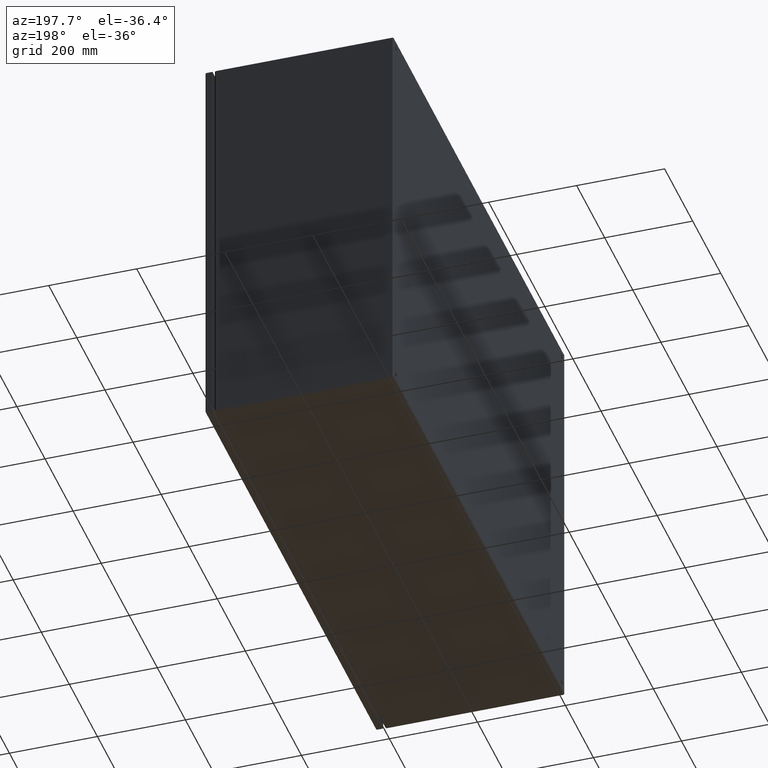
[diagram: clean part render]
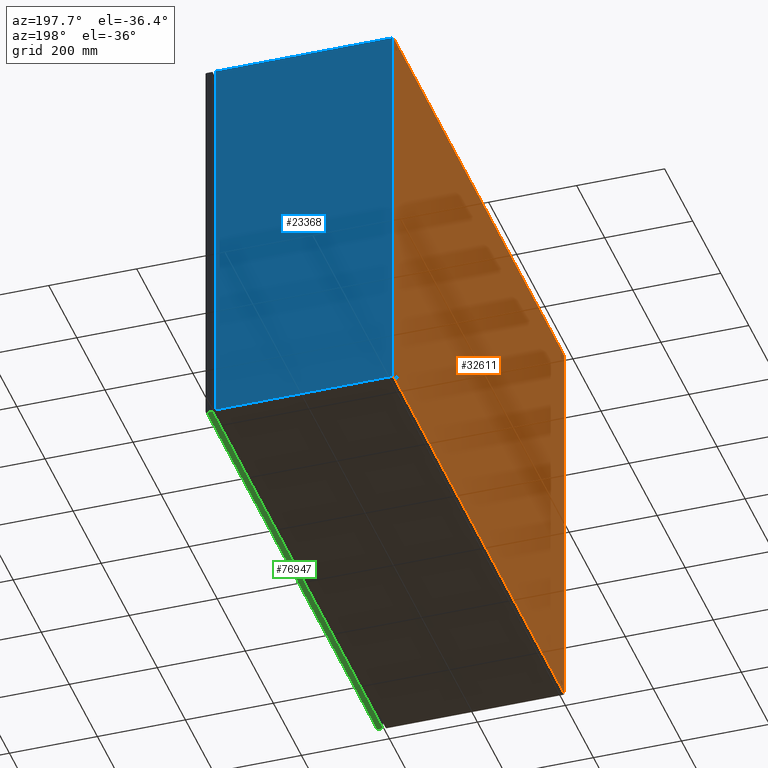
[diagram: same view with three faces highlighted in distinct colors, each labeled with its STEP entity id]
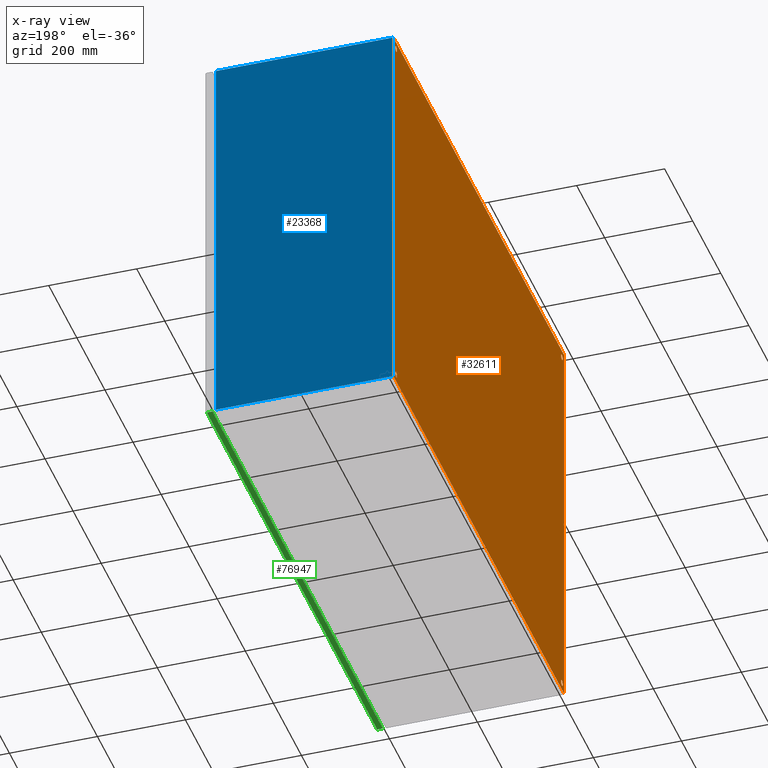
[diagram: x-ray of the same camera — body ghosted, the three highlighted faces saturated]
A machine part, auxiliary view with three faces highlighted in distinct colors.
The next image is the same camera in x-ray (body ghosted, the three faces saturated) — at least one of them is partly hidden behind the body in this view.
Their STEP definitions:

[orange] entity #32611 — the highlighted planar face has unit normal (-1, -0, -0).
#3197 = ORIENTED_EDGE ( 'NONE', *, *, #57194, .T. ) ;
#3555 = ORIENTED_EDGE ( 'NONE', *, *, #69077, .T. ) ;
#3727 = ORIENTED_EDGE ( 'NONE', *, *, #66244, .T. ) ;
#4475 = AXIS2_PLACEMENT_3D ( 'NONE', #63617, #50780, #23515 ) ;
#6293 = DIRECTION ( 'NONE',  ( -0.0000000000000000000, -1.000000000000000000, -2.465190328815659976E-32 ) ) ;
#6381 = DIRECTION ( 'NONE',  ( -1.050374563773339992E-16, -0.0000000000000000000, -1.000000000000000000 ) ) ;
#6634 = CIRCLE ( 'NONE', #4475, 0.2499999999999986955 ) ;
#8325 = FACE_BOUND ( 'NONE', #31348, .T. ) ;
#9851 = ORIENTED_EDGE ( 'NONE', *, *, #24111, .T. ) ;
#10496 = EDGE_CURVE ( 'NONE', #60337, #21797, #47101, .T. ) ;
#10601 = EDGE_CURVE ( 'NONE', #21797, #60337, #53225, .T. ) ;
#11602 = VERTEX_POINT ( 'NONE', #62150 ) ;
#12925 = CARTESIAN_POINT ( 'NONE',  ( -17.92800000000000082, -4.370956789862821150E-15, 23.87500000000000000 ) ) ;
#13348 = VECTOR ( 'NONE', #14225, 39.37007874015748143 ) ;
#13508 = EDGE_LOOP ( 'NONE', ( #57564, #31217, #9851, #29960 ) ) ;
#14086 = EDGE_CURVE ( 'NONE', #46427, #31293, #14613, .T. ) ;
#14225 = DIRECTION ( 'NONE',  ( -1.000000000000000000, -0.0000000000000000000, -2.789766218722119856E-34 ) ) ;
#14613 = LINE ( 'NONE', #60579, #79514 ) ;
#14812 = CARTESIAN_POINT ( 'NONE',  ( 17.25000000000003908, -6.162975822039149940E-33, -23.00000000000000355 ) ) ;
#15080 = DIRECTION ( 'NONE',  ( 0.0000000000000000000, -2.465190328815672840E-32, 1.000000000000000000 ) ) ;
#15111 = EDGE_LOOP ( 'NONE', ( #74579, #3197 ) ) ;
#15367 = CARTESIAN_POINT ( 'NONE',  ( -17.92800000000007898, -6.693027584477444589E-15, 23.89200000000000301 ) ) ;
#17160 = CARTESIAN_POINT ( 'NONE',  ( -17.25000000000003908, 0.0000000000000000000, -23.25000000000000000 ) ) ;
#17515 = CARTESIAN_POINT ( 'NONE',  ( 17.25000000000003908, 0.0000000000000000000, -23.25000000000000000 ) ) ;
#20198 = AXIS2_PLACEMENT_3D ( 'NONE', #57126, #70239, #83129 ) ;
#20866 = VERTEX_POINT ( 'NONE', #46872 ) ;
#21595 = DIRECTION ( 'NONE',  ( 0.0000000000000000000, -2.465190328815659702E-32, 1.000000000000000000 ) ) ;
#21762 = CARTESIAN_POINT ( 'NONE',  ( -17.92800000000003990, -6.112509885823788927E-15, 23.89200000000000301 ) ) ;
#21797 = VERTEX_POINT ( 'NONE', #37519 ) ;
#21834 = AXIS2_PLACEMENT_3D ( 'NONE', #49403, #35053, #15080 ) ;
#21900 = PLANE ( 'NONE',  #29305 ) ;
#22145 = DIRECTION ( 'NONE',  ( -1.000000000000000000, 3.081487911019580102E-33, 7.596454196607838998E-65 ) ) ;
#23084 = ORIENTED_EDGE ( 'NONE', *, *, #10496, .T. ) ;
#23515 = DIRECTION ( 'NONE',  ( 0.0000000000000000000, -2.465190328815672840E-32, 1.000000000000000000 ) ) ;
#24111 = EDGE_CURVE ( 'NONE', #31293, #20866, #71245, .T. ) ;
#27273 = CIRCLE ( 'NONE', #20198, 0.2499999999999986955 ) ;
#27439 = VERTEX_POINT ( 'NONE', #21762 ) ;
#27816 = CARTESIAN_POINT ( 'NONE',  ( -17.25000000000003908, 6.162975822039148572E-33, -23.50000000000000000 ) ) ;
#29305 = AXIS2_PLACEMENT_3D ( 'NONE', #48317, #34255, #21595 ) ;
#29960 = ORIENTED_EDGE ( 'NONE', *, *, #33393, .T. ) ;
#30029 = EDGE_CURVE ( 'NONE', #11602, #31219, #74355, .T. ) ;
#30734 = CARTESIAN_POINT ( 'NONE',  ( 17.92800000000003990, -7.205249083289495003E-15, 23.89200000000000301 ) ) ;
#31217 = ORIENTED_EDGE ( 'NONE', *, *, #14086, .T. ) ;
#31219 = VERTEX_POINT ( 'NONE', #35428 ) ;
#31293 = VERTEX_POINT ( 'NONE', #63435 ) ;
#31348 = EDGE_LOOP ( 'NONE', ( #69463, #72887 ) ) ;
#32611 = ADVANCED_FACE ( 'NONE', ( #59671, #76465, #85767, #8325, #44045 ), #21900, .T. ) ;
#33227 = DIRECTION ( 'NONE',  ( 1.224646799147350002E-16, -0.0000000000000000000, 1.000000000000000000 ) ) ;
#33393 = EDGE_CURVE ( 'NONE', #20866, #27439, #75129, .T. ) ;
#34255 = DIRECTION ( 'NONE',  ( 3.081487911019580102E-33, 1.000000000000000000, 2.465190328815659702E-32 ) ) ;
#34831 = DIRECTION ( 'NONE',  ( 0.0000000000000000000, -2.465190328815672840E-32, 1.000000000000000000 ) ) ;
#35053 = DIRECTION ( 'NONE',  ( -0.0000000000000000000, -1.000000000000000000, -2.465190328815659976E-32 ) ) ;
#35428 = CARTESIAN_POINT ( 'NONE',  ( -17.25000000000003908, -6.162975822039149940E-33, 23.50000000000000000 ) ) ;
#37012 = EDGE_CURVE ( 'NONE', #31219, #11602, #6634, .T. ) ;
#37519 = CARTESIAN_POINT ( 'NONE',  ( 17.25000000000003908, -6.162975822039149940E-33, 23.50000000000000000 ) ) ;
#38616 = VECTOR ( 'NONE', #33227, 39.37007874015748143 ) ;
#38850 = VECTOR ( 'NONE', #22145, 39.37007874015748143 ) ;
#40085 = DIRECTION ( 'NONE',  ( 0.0000000000000000000, -2.465190328815672840E-32, 1.000000000000000000 ) ) ;
#41383 = CIRCLE ( 'NONE', #46797, 0.2499999999999986955 ) ;
#44045 = FACE_BOUND ( 'NONE', #50804, .T. ) ;
#45279 = AXIS2_PLACEMENT_3D ( 'NONE', #68118, #80974, #34831 ) ;
#46427 = VERTEX_POINT ( 'NONE', #30734 ) ;
#46797 = AXIS2_PLACEMENT_3D ( 'NONE', #17515, #64047, #50650 ) ;
#46872 = CARTESIAN_POINT ( 'NONE',  ( -17.92800000000002214, -3.278217592397115862E-15, -23.89199999999999946 ) ) ;
#47101 = CIRCLE ( 'NONE', #69702, 0.2499999999999986955 ) ;
#47110 = DIRECTION ( 'NONE',  ( -0.0000000000000000000, -1.000000000000000000, -2.465190328815659976E-32 ) ) ;
#47216 = AXIS2_PLACEMENT_3D ( 'NONE', #17160, #77463, #78312 ) ;
#47643 = CIRCLE ( 'NONE', #45279, 0.2499999999999986955 ) ;
#48317 = CARTESIAN_POINT ( 'NONE',  ( 0.0000000000000000000, 0.0000000000000000000, 0.0000000000000000000 ) ) ;
#49403 = CARTESIAN_POINT ( 'NONE',  ( -17.25000000000003908, 0.0000000000000000000, 23.25000000000000000 ) ) ;
#50650 = DIRECTION ( 'NONE',  ( 0.0000000000000000000, -2.465190328815672840E-32, 1.000000000000000000 ) ) ;
#50780 = DIRECTION ( 'NONE',  ( -0.0000000000000000000, -1.000000000000000000, -2.465190328815659976E-32 ) ) ;
#50804 = EDGE_LOOP ( 'NONE', ( #3727, #3555 ) ) ;
#51282 = CARTESIAN_POINT ( 'NONE',  ( 17.25000000000003908, 6.162975822039148572E-33, -23.50000000000000000 ) ) ;
#52307 = DIRECTION ( 'NONE',  ( 0.0000000000000000000, -2.465190328815672840E-32, 1.000000000000000000 ) ) ;
#53225 = CIRCLE ( 'NONE', #80503, 0.2499999999999986955 ) ;
#55235 = CARTESIAN_POINT ( 'NONE',  ( 0.0000000000000000000, 5.889832733606374880E-31, -23.89200000000000301 ) ) ;
#57126 = CARTESIAN_POINT ( 'NONE',  ( 17.25000000000003908, 0.0000000000000000000, -23.25000000000000000 ) ) ;
#57194 = EDGE_CURVE ( 'NONE', #65796, #63443, #27273, .T. ) ;
#57564 = ORIENTED_EDGE ( 'NONE', *, *, #60625, .F. ) ;
#59671 = FACE_OUTER_BOUND ( 'NONE', #13508, .T. ) ;
#60337 = VERTEX_POINT ( 'NONE', #83575 ) ;
#60579 = CARTESIAN_POINT ( 'NONE',  ( 17.92800000000000082, -4.370956789862821150E-15, -39.87500000000000711 ) ) ;
#60625 = EDGE_CURVE ( 'NONE', #46427, #27439, #73095, .T. ) ;
#61119 = EDGE_LOOP ( 'NONE', ( #79015, #23084 ) ) ;
#62150 = CARTESIAN_POINT ( 'NONE',  ( -17.25000000000003908, 6.162975822039148572E-33, 23.00000000000000355 ) ) ;
#63197 = EDGE_CURVE ( 'NONE', #63443, #65796, #41383, .T. ) ;
#63435 = CARTESIAN_POINT ( 'NONE',  ( 17.92800000000002214, -1.092739197465705090E-15, -23.89200000000000301 ) ) ;
#63443 = VERTEX_POINT ( 'NONE', #14812 ) ;
#63617 = CARTESIAN_POINT ( 'NONE',  ( -17.25000000000003908, 0.0000000000000000000, 23.25000000000000000 ) ) ;
#64047 = DIRECTION ( 'NONE',  ( -0.0000000000000000000, -1.000000000000000000, -2.465190328815659976E-32 ) ) ;
#65796 = VERTEX_POINT ( 'NONE', #51282 ) ;
#66244 = EDGE_CURVE ( 'NONE', #85416, #76287, #77318, .T. ) ;
#68118 = CARTESIAN_POINT ( 'NONE',  ( -17.25000000000003908, 0.0000000000000000000, -23.25000000000000000 ) ) ;
#69077 = EDGE_CURVE ( 'NONE', #76287, #85416, #47643, .T. ) ;
#69101 = CARTESIAN_POINT ( 'NONE',  ( -17.25000000000003908, -6.162975822039149940E-33, -23.00000000000000355 ) ) ;
#69463 = ORIENTED_EDGE ( 'NONE', *, *, #37012, .T. ) ;
#69702 = AXIS2_PLACEMENT_3D ( 'NONE', #86161, #6293, #52307 ) ;
#70239 = DIRECTION ( 'NONE',  ( -0.0000000000000000000, -1.000000000000000000, -2.465190328815659976E-32 ) ) ;
#71245 = LINE ( 'NONE', #55235, #38850 ) ;
#72887 = ORIENTED_EDGE ( 'NONE', *, *, #30029, .T. ) ;
#73095 = LINE ( 'NONE', #15367, #13348 ) ;
#74355 = CIRCLE ( 'NONE', #21834, 0.2499999999999986955 ) ;
#74579 = ORIENTED_EDGE ( 'NONE', *, *, #63197, .T. ) ;
#75129 = LINE ( 'NONE', #12925, #38616 ) ;
#76287 = VERTEX_POINT ( 'NONE', #27816 ) ;
#76465 = FACE_BOUND ( 'NONE', #61119, .T. ) ;
#77318 = CIRCLE ( 'NONE', #47216, 0.2499999999999986955 ) ;
#77463 = DIRECTION ( 'NONE',  ( -0.0000000000000000000, -1.000000000000000000, -2.465190328815659976E-32 ) ) ;
#78312 = DIRECTION ( 'NONE',  ( 0.0000000000000000000, -2.465190328815672840E-32, 1.000000000000000000 ) ) ;
#79015 = ORIENTED_EDGE ( 'NONE', *, *, #10601, .T. ) ;
#79514 = VECTOR ( 'NONE', #6381, 39.37007874015748143 ) ;
#80047 = CARTESIAN_POINT ( 'NONE',  ( 17.25000000000003908, 0.0000000000000000000, 23.25000000000000000 ) ) ;
#80503 = AXIS2_PLACEMENT_3D ( 'NONE', #80047, #47110, #40085 ) ;
#80974 = DIRECTION ( 'NONE',  ( -0.0000000000000000000, -1.000000000000000000, -2.465190328815659976E-32 ) ) ;
#83129 = DIRECTION ( 'NONE',  ( 0.0000000000000000000, -2.465190328815672840E-32, 1.000000000000000000 ) ) ;
#83575 = CARTESIAN_POINT ( 'NONE',  ( 17.25000000000003908, 6.162975822039148572E-33, 23.00000000000000355 ) ) ;
#85416 = VERTEX_POINT ( 'NONE', #69101 ) ;
#85767 = FACE_BOUND ( 'NONE', #15111, .T. ) ;
#86161 = CARTESIAN_POINT ( 'NONE',  ( 17.25000000000003908, 0.0000000000000000000, 23.25000000000000000 ) ) ;

[blue] entity #23368 — the highlighted planar face has unit normal (0, -1, 0).
#2677 = CARTESIAN_POINT ( 'NONE',  ( 17.92800000000003990, -0.1080000000000066879, 24.00000000000000355 ) ) ;
#6747 = CARTESIAN_POINT ( 'NONE',  ( 125.4060000000000059, -15.89199999999999946, 24.00000000000000355 ) ) ;
#10167 = CARTESIAN_POINT ( 'NONE',  ( 17.92800000000000082, -0.07200000000000748857, 24.00000000000000355 ) ) ;
#11547 = CARTESIAN_POINT ( 'NONE',  ( 17.92800000000003635, -15.89199999999999946, 24.00000000000000355 ) ) ;
#15941 = DIRECTION ( 'NONE',  ( 1.000000000000000000, -8.184215813433059779E-50, 6.682919368369109790E-34 ) ) ;
#17206 = ORIENTED_EDGE ( 'NONE', *, *, #49545, .T. ) ;
#17371 = CARTESIAN_POINT ( 'NONE',  ( -17.92800000000000082, -15.89199999999999946, 24.00000000000000355 ) ) ;
#17995 = FACE_OUTER_BOUND ( 'NONE', #49906, .T. ) ;
#23368 = ADVANCED_FACE ( 'NONE', ( #17995 ), #64344, .F. ) ;
#23864 = AXIS2_PLACEMENT_3D ( 'NONE', #37835, #76667, #36942 ) ;
#24261 = CARTESIAN_POINT ( 'NONE',  ( -17.92800000000003990, -0.1080000000000066879, 24.00000000000000355 ) ) ;
#24598 = LINE ( 'NONE', #6747, #68555 ) ;
#25788 = VERTEX_POINT ( 'NONE', #11547 ) ;
#29764 = CARTESIAN_POINT ( 'NONE',  ( 125.4060000000000059, -0.1080000000000066879, 24.00000000000000355 ) ) ;
#32445 = ORIENTED_EDGE ( 'NONE', *, *, #51946, .F. ) ;
#36942 = DIRECTION ( 'NONE',  ( 0.0000000000000000000, 1.000000000000000000, 1.224646799147350002E-16 ) ) ;
#37835 = CARTESIAN_POINT ( 'NONE',  ( 125.4060000000000059, 8.741913579725631255E-15, 24.00000000000000355 ) ) ;
#41782 = LINE ( 'NONE', #10167, #53215 ) ;
#41885 = VERTEX_POINT ( 'NONE', #24261 ) ;
#43916 = DIRECTION ( 'NONE',  ( -6.162975822039149940E-33, 1.000000000000000000, -7.547468613682752918E-49 ) ) ;
#49545 = EDGE_CURVE ( 'NONE', #41885, #53675, #64007, .T. ) ;
#49906 = EDGE_LOOP ( 'NONE', ( #17206, #60092, #59566, #32445 ) ) ;
#51946 = EDGE_CURVE ( 'NONE', #41885, #63931, #83029, .T. ) ;
#53215 = VECTOR ( 'NONE', #43916, 39.37007874015748143 ) ;
#53675 = VERTEX_POINT ( 'NONE', #17371 ) ;
#55896 = VECTOR ( 'NONE', #15941, 39.37007874015748143 ) ;
#59486 = DIRECTION ( 'NONE',  ( -1.000000000000000000, 8.184215813433059779E-50, -6.682919368369109790E-34 ) ) ;
#59566 = ORIENTED_EDGE ( 'NONE', *, *, #75024, .T. ) ;
#60092 = ORIENTED_EDGE ( 'NONE', *, *, #66868, .F. ) ;
#63931 = VERTEX_POINT ( 'NONE', #2677 ) ;
#64007 = LINE ( 'NONE', #72954, #66068 ) ;
#64344 = PLANE ( 'NONE',  #23864 ) ;
#66068 = VECTOR ( 'NONE', #85481, 39.37007874015748143 ) ;
#66868 = EDGE_CURVE ( 'NONE', #25788, #53675, #24598, .T. ) ;
#68555 = VECTOR ( 'NONE', #59486, 39.37007874015748143 ) ;
#72954 = CARTESIAN_POINT ( 'NONE',  ( -17.92800000000000082, -0.07200000000000748857, 24.00000000000000355 ) ) ;
#75024 = EDGE_CURVE ( 'NONE', #25788, #63931, #41782, .T. ) ;
#76667 = DIRECTION ( 'NONE',  ( 6.682919368369109790E-34, 1.224646799147350002E-16, -1.000000000000000000 ) ) ;
#83029 = LINE ( 'NONE', #29764, #55896 ) ;
#85481 = DIRECTION ( 'NONE',  ( -3.081487911019580102E-33, -1.000000000000000000, 3.773734306841382536E-49 ) ) ;

[green] entity #76947 — the highlighted planar face has unit normal (-0, -0, -1).
#1112 = AXIS2_PLACEMENT_3D ( 'NONE', #53327, #52755, #33194 ) ;
#1686 = LINE ( 'NONE', #36579, #4811 ) ;
#4560 = VECTOR ( 'NONE', #53003, 39.37007874015748143 ) ;
#4811 = VECTOR ( 'NONE', #9543, 39.37007874015748143 ) ;
#5060 = EDGE_CURVE ( 'NONE', #82780, #58145, #20407, .T. ) ;
#7778 = CARTESIAN_POINT ( 'NONE',  ( 17.97299999999997766, -16.77950000000004138, 23.91242125984251743 ) ) ;
#9543 = DIRECTION ( 'NONE',  ( -0.0000000000000000000, 1.000000000000000000, 0.0000000000000000000 ) ) ;
#12860 = CARTESIAN_POINT ( 'NONE',  ( 17.97299999999997766, -16.21700000000004138, -23.87650000000000361 ) ) ;
#14368 = VERTEX_POINT ( 'NONE', #36618 ) ;
#15092 = LINE ( 'NONE', #51860, #4560 ) ;
#20407 = LINE ( 'NONE', #12860, #84377 ) ;
#24243 = ORIENTED_EDGE ( 'NONE', *, *, #40597, .T. ) ;
#29117 = VERTEX_POINT ( 'NONE', #64428 ) ;
#32872 = DIRECTION ( 'NONE',  ( -0.0000000000000000000, 0.0000000000000000000, 1.000000000000000000 ) ) ;
#33194 = DIRECTION ( 'NONE',  ( -6.123031769111889989E-17, 1.000000000000000000, 0.0000000000000000000 ) ) ;
#36579 = CARTESIAN_POINT ( 'NONE',  ( 17.97299999999997766, -16.77950000000004138, -23.91242125984251743 ) ) ;
#36618 = CARTESIAN_POINT ( 'NONE',  ( 17.97299999999998121, -16.73400000000004439, -23.91242125984251388 ) ) ;
#38994 = FACE_OUTER_BOUND ( 'NONE', #39760, .T. ) ;
#39760 = EDGE_LOOP ( 'NONE', ( #48407, #24243, #58964, #81352 ) ) ;
#40597 = EDGE_CURVE ( 'NONE', #14368, #82780, #1686, .T. ) ;
#42927 = VECTOR ( 'NONE', #48566, 39.37007874015748143 ) ;
#48407 = ORIENTED_EDGE ( 'NONE', *, *, #58845, .F. ) ;
#48566 = DIRECTION ( 'NONE',  ( -0.0000000000000000000, -1.000000000000000000, -0.0000000000000000000 ) ) ;
#51860 = CARTESIAN_POINT ( 'NONE',  ( 17.97299999999997766, -16.73400000000004084, 23.87650000000000361 ) ) ;
#52755 = DIRECTION ( 'NONE',  ( 1.000000000000000000, 6.123031769111889989E-17, 0.0000000000000000000 ) ) ;
#53003 = DIRECTION ( 'NONE',  ( -1.224606353822379970E-16, 6.123031769111889989E-17, 1.000000000000000000 ) ) ;
#53048 = PLANE ( 'NONE',  #1112 ) ;
#53327 = CARTESIAN_POINT ( 'NONE',  ( 17.97299999999997766, -16.77950000000004138, 23.87650000000000361 ) ) ;
#56965 = CARTESIAN_POINT ( 'NONE',  ( 17.97299999999997766, -16.21700000000004138, 23.91242125984251388 ) ) ;
#58145 = VERTEX_POINT ( 'NONE', #56965 ) ;
#58845 = EDGE_CURVE ( 'NONE', #14368, #29117, #15092, .T. ) ;
#58964 = ORIENTED_EDGE ( 'NONE', *, *, #5060, .T. ) ;
#63802 = CARTESIAN_POINT ( 'NONE',  ( 17.97299999999997766, -16.21700000000004138, -23.91242125984251743 ) ) ;
#64428 = CARTESIAN_POINT ( 'NONE',  ( 17.97299999999997766, -16.73400000000004084, 23.91242125984251743 ) ) ;
#66882 = LINE ( 'NONE', #7778, #42927 ) ;
#76947 = ADVANCED_FACE ( 'NONE', ( #38994 ), #53048, .T. ) ;
#81352 = ORIENTED_EDGE ( 'NONE', *, *, #86194, .T. ) ;
#82780 = VERTEX_POINT ( 'NONE', #63802 ) ;
#84377 = VECTOR ( 'NONE', #32872, 39.37007874015748143 ) ;
#86194 = EDGE_CURVE ( 'NONE', #58145, #29117, #66882, .T. ) ;